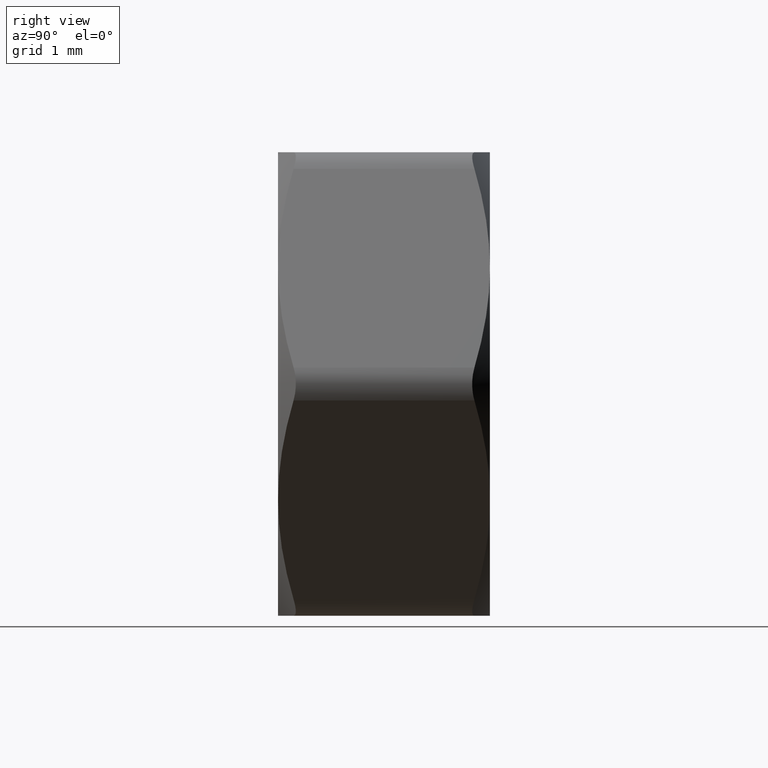
[diagram: clean part render]
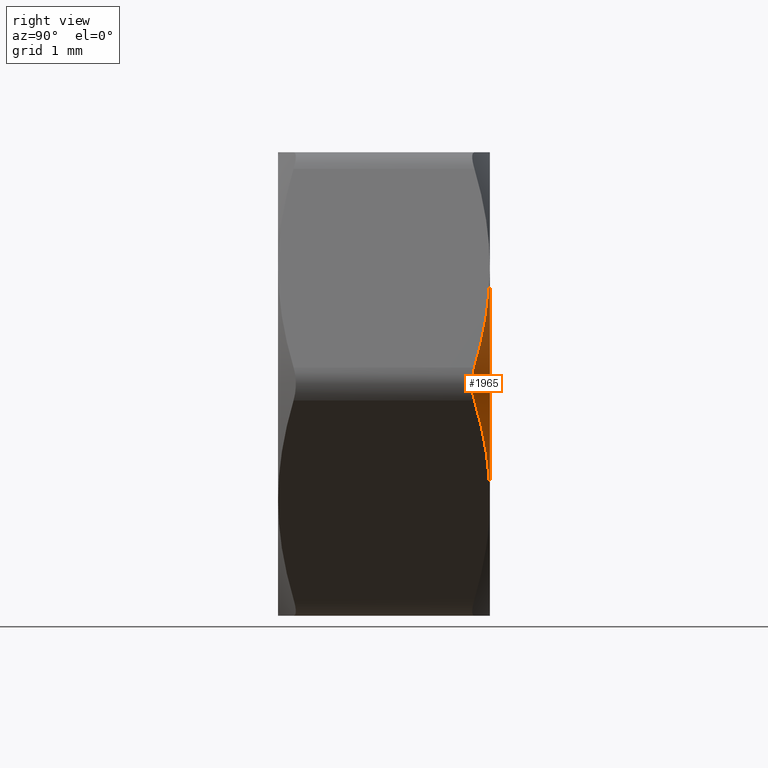
[diagram: same view with one face highlighted and labeled with its STEP entity id]
A machine part, right view. The second image highlights one B-rep face of the part: STEP entity #1965.
In plain terms, the highlighted conical surface has half-angle 60 deg.
Its self-contained STEP definition (entity closure, byte-faithful):
#8 = CARTESIAN_POINT ( 'NONE',  ( 3.755510572827375900, 1.438623072130314200, -0.4952648795008763300 ) ) ;
#65 = CARTESIAN_POINT ( 'NONE',  ( 3.964175597709122200, 1.332013481293493800, -0.08746360672527914200 ) ) ;
#71 = DIRECTION ( 'NONE',  ( 2.116531817430027100E-016, -1.000000000000000000, -0.0000000000000000000 ) ) ;
#148 = ORIENTED_EDGE ( 'NONE', *, *, #1997, .F. ) ;
#167 = CARTESIAN_POINT ( 'NONE',  ( 3.897114317033258500, 1.366101065750563400, 0.2499999999943144400 ) ) ;
#203 = CARTESIAN_POINT ( 'NONE',  ( 3.897114317033258500, 1.366101065750563400, 0.2499999999943144400 ) ) ;
#209 = CARTESIAN_POINT ( 'NONE',  ( 3.897114317029971800, 1.366101065752247200, -0.2499999999999927000 ) ) ;
#228 = CARTESIAN_POINT ( 'NONE',  ( 3.897114317029971800, 1.366101065752247200, -0.2499999999999927000 ) ) ;
#272 = AXIS2_PLACEMENT_3D ( 'NONE', #1104, #1877, #1110 ) ;
#334 = CARTESIAN_POINT ( 'NONE',  ( 3.612771519549222300, 1.497437231825316000, -0.7424961720029192900 ) ) ;
#358 = VERTEX_POINT ( 'NONE', #209 ) ;
#410 = CARTESIAN_POINT ( 'NONE',  ( 3.940208332958567500, 1.344030572379143700, -0.1753589749094866800 ) ) ;
#430 = CIRCLE ( 'NONE', #272, 3.499999999999998700 ) ;
#467 = B_SPLINE_CURVE_WITH_KNOTS ( 'NONE', 3,
 ( #1598, #1277, #1683, #65, #410, #228 ),
 .UNSPECIFIED., .F., .F.,
 ( 4, 2, 4 ),
 ( 7.203807182847987800E-015, 0.0002632573935182436300, 0.0005265147870292833900 ),
 .UNSPECIFIED. ) ;
#470 = CARTESIAN_POINT ( 'NONE',  ( 3.031088913245535600, 1.599999999999999900, -1.749999999999998400 ) ) ;
#599 = VERTEX_POINT ( 'NONE', #470 ) ;
#626 = AXIS2_PLACEMENT_3D ( 'NONE', #1476, #71, #677 ) ;
#677 = DIRECTION ( 'NONE',  ( 1.000000000000000000, 1.858632295689436100E-016, 0.0000000000000000000 ) ) ;
#683 = CARTESIAN_POINT ( 'NONE',  ( 3.031088913245533900, 1.599999999999999900, 1.750000000000001800 ) ) ;
#741 = ORIENTED_EDGE ( 'NONE', *, *, #1003, .T. ) ;
#762 = FACE_OUTER_BOUND ( 'NONE', #1888, .T. ) ;
#844 = CARTESIAN_POINT ( 'NONE',  ( 3.613280654127129000, 1.511465772224714200, 0.7416143250461079100 ) ) ;
#914 = EDGE_CURVE ( 'NONE', #599, #358, #1823, .T. ) ;
#942 = CARTESIAN_POINT ( 'NONE',  ( 3.324242401370070400, 1.578227301213956900, -1.242243264152256700 ) ) ;
#944 = ORIENTED_EDGE ( 'NONE', *, *, #914, .F. ) ;
#967 = CARTESIAN_POINT ( 'NONE',  ( 3.897114317029971800, 1.366101065752247200, -0.2499999999999927000 ) ) ;
#1003 = EDGE_CURVE ( 'NONE', #1595, #358, #467, .T. ) ;
#1104 = CARTESIAN_POINT ( 'NONE',  ( -3.386450907888041400E-016, 1.600000000000000100, 1.283079225268731100E-015 ) ) ;
#1110 = DIRECTION ( 'NONE',  ( 1.776356839400250500E-015, 0.0000000000000000000, 1.000000000000000000 ) ) ;
#1118 = ORIENTED_EDGE ( 'NONE', *, *, #1416, .T. ) ;
#1154 = CARTESIAN_POINT ( 'NONE',  ( 3.325364651374455200, 1.600000000000001400, 1.240299470125879800 ) ) ;
#1277 = CARTESIAN_POINT ( 'NONE',  ( 3.940195820242970500, 1.344036980738206400, 0.1753806475686512100 ) ) ;
#1297 = B_SPLINE_CURVE_WITH_KNOTS ( 'NONE', 3,
 ( #203, #844, #1154, #683 ),
 .UNSPECIFIED., .F., .F.,
 ( 4, 4 ),
 ( 0.0002971722857521890100, 0.002044882221487522400 ),
 .UNSPECIFIED. ) ;
#1395 = CARTESIAN_POINT ( 'NONE',  ( 3.031088913245535600, 1.599999999999999900, -1.749999999999998400 ) ) ;
#1416 = EDGE_CURVE ( 'NONE', #599, #1617, #430, .T. ) ;
#1476 = CARTESIAN_POINT ( 'NONE',  ( -3.386450907888041400E-016, 1.599999999999999200, 0.0000000000000000000 ) ) ;
#1595 = VERTEX_POINT ( 'NONE', #167 ) ;
#1598 = CARTESIAN_POINT ( 'NONE',  ( 3.897114317033258500, 1.366101065750563400, 0.2499999999943144400 ) ) ;
#1617 = VERTEX_POINT ( 'NONE', #1902 ) ;
#1683 = CARTESIAN_POINT ( 'NONE',  ( 3.964027276540659500, 1.332088313469197200, 0.08830743806189024500 ) ) ;
#1735 = CARTESIAN_POINT ( 'NONE',  ( 3.177622754318765200, 1.600000000000004300, -1.496195942232931600 ) ) ;
#1787 = CONICAL_SURFACE ( 'NONE', #626, 3.500000000000000000, 1.047197551196603200 ) ;
#1823 = B_SPLINE_CURVE_WITH_KNOTS ( 'NONE', 3,
 ( #1395, #1735, #942, #334, #8, #967 ),
 .UNSPECIFIED., .F., .F.,
 ( 4, 2, 4 ),
 ( 0.002044882221487533200, 0.002915149854128587900, 0.003785417486769642100 ),
 .UNSPECIFIED. ) ;
#1877 = DIRECTION ( 'NONE',  ( 0.0000000000000000000, -1.000000000000000000, -0.0000000000000000000 ) ) ;
#1888 = EDGE_LOOP ( 'NONE', ( #148, #741, #944, #1118 ) ) ;
#1902 = CARTESIAN_POINT ( 'NONE',  ( 3.031088913245533900, 1.599999999999999900, 1.750000000000001800 ) ) ;
#1965 = ADVANCED_FACE ( 'NONE', ( #762 ), #1787, .T. ) ;
#1997 = EDGE_CURVE ( 'NONE', #1595, #1617, #1297, .T. ) ;